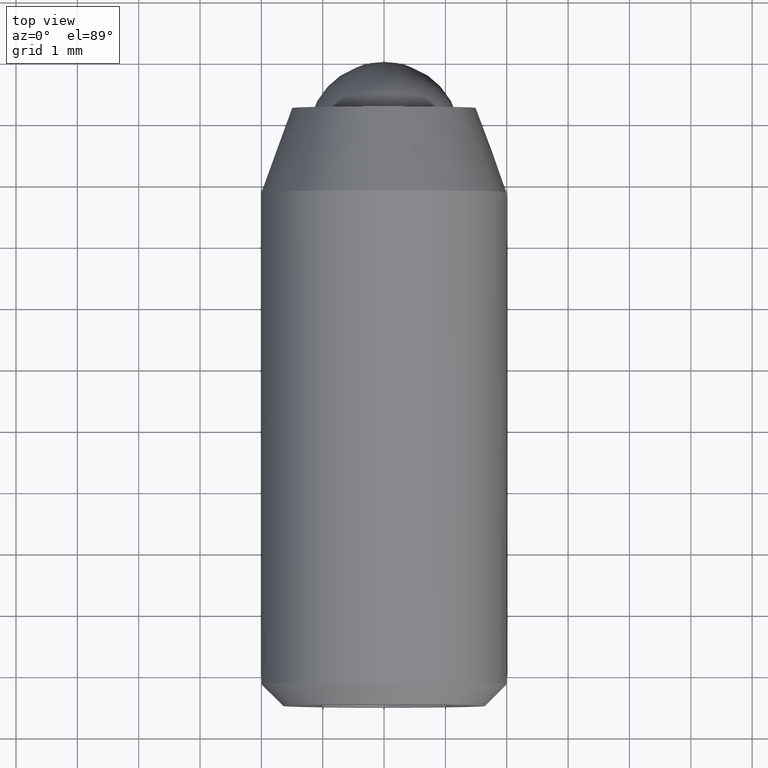
[diagram: clean part render]
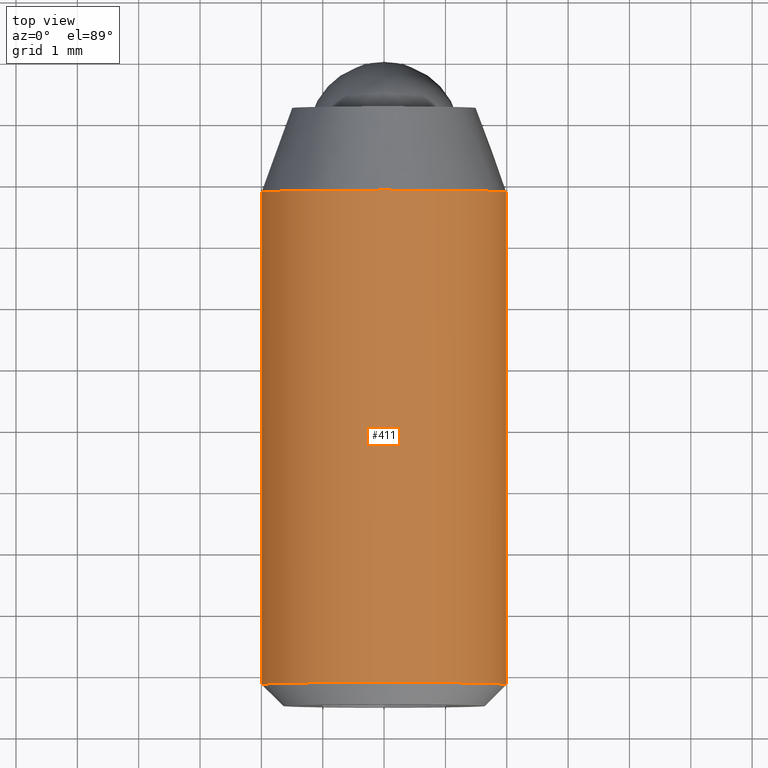
[diagram: same view with one face highlighted and labeled with its STEP entity id]
A machine part, top view. The second image highlights one B-rep face of the part: STEP entity #411.
In plain terms, the highlighted face is a freeform B-spline surface patch.
Its self-contained STEP definition (entity closure, byte-faithful):
#230=CARTESIAN_POINT('',(-0.468647227970026,-1.923082475000000,-1.944317303249655));
#231=CARTESIAN_POINT('',(-0.297656594332521,-1.923082475000000,-1.985531916897912));
#232=CARTESIAN_POINT('',(-0.122097079069714,-1.923082475000000,-1.996269596843734));
#233=CARTESIAN_POINT('',(1.874172517774020,-1.923082475000000,-2.118366675913449));
#234=CARTESIAN_POINT('',(1.996269596843733,-1.923082475000000,-0.122097079069714));
#235=CARTESIAN_POINT('',(2.118366675913447,-1.923082475000000,1.874172517774019));
#236=CARTESIAN_POINT('',(0.122097079069714,-1.923082475000000,1.996269596843733));
#237=CARTESIAN_POINT('',(-1.874172517774020,-1.923082475000000,2.118366675913447));
#238=CARTESIAN_POINT('',(-1.996269596843733,-1.923082475000000,0.122097079069714));
#239=CARTESIAN_POINT('',(-0.468647227970026,-10.355672938124998,-1.944317303249655));
#240=CARTESIAN_POINT('',(-0.297656594332521,-10.355672938124998,-1.985531916897912));
#241=CARTESIAN_POINT('',(-0.122097079069714,-10.355672938125000,-1.996269596843734));
#242=CARTESIAN_POINT('',(1.874172517774020,-10.355672938124998,-2.118366675913449));
#243=CARTESIAN_POINT('',(1.996269596843733,-10.355672938125000,-0.122097079069714));
#244=CARTESIAN_POINT('',(2.118366675913447,-10.355672938124998,1.874172517774019));
#245=CARTESIAN_POINT('',(0.122097079069714,-10.355672938125000,1.996269596843733));
#246=CARTESIAN_POINT('',(-1.874172517774020,-10.355672938124998,2.118366675913447));
#247=CARTESIAN_POINT('',(-1.996269596843733,-10.355672938125000,0.122097079069714));
#255=(BOUNDED_SURFACE()B_SPLINE_SURFACE(2,1,((#230,#239),(#231,#240),(#232,#241),(#233,#242),(#234,#243),(#235,#244),(#236,#245),(#237,#246),(#238,#247)),.UNSPECIFIED.,.F.,.F.,.U.)B_SPLINE_SURFACE_WITH_KNOTS((3,2,2,2,3),(2,2),(0.0,0.397645019878171,3.711353518862931,7.025062017847690,10.338770516832451),(0.0,8.432590463124999),.UNSPECIFIED.)GEOMETRIC_REPRESENTATION_ITEM()RATIONAL_B_SPLINE_SURFACE(((0.938140952186599,0.938140952186599),(0.964852813742386,0.964852813742386),(1.0,1.0),(0.707106781186548,0.707106781186548),(1.0,1.0),(0.707106781186548,0.707106781186548),(1.0,1.0),(0.707106781186548,0.707106781186548),(1.0,1.0)))REPRESENTATION_ITEM('')SURFACE());
#256=CARTESIAN_POINT('',(-0.468647227972025,-10.150000000000000,-1.944317303249173));
#257=VERTEX_POINT('',#256);
#258=CARTESIAN_POINT('',(0.0,-10.150000000000000,-2.0));
#259=VERTEX_POINT('',#258);
#260=CARTESIAN_POINT('',(-0.468647227972025,-10.149999999999999,-1.944317303249173));
#261=CARTESIAN_POINT('',(-0.237631606152997,-10.149999999999999,-2.000000000000001));
#262=CARTESIAN_POINT('',(0.0,-10.150000000000000,-2.0));
#270=(BOUNDED_CURVE()B_SPLINE_CURVE(2,(#260,#261,#262),.UNSPECIFIED.,.F.,.U.)B_SPLINE_CURVE_WITH_KNOTS((3,3),(0.959962709885913,1.0),.UNSPECIFIED.)CURVE()GEOMETRIC_REPRESENTATION_ITEM()RATIONAL_B_SPLINE_CURVE((0.921210900018809,0.953093396903668,1.0))REPRESENTATION_ITEM(''));
#271=EDGE_CURVE('',#257,#259,#270,.T.);
#272=ORIENTED_EDGE('',*,*,#271,.F.);
#273=CARTESIAN_POINT('',(-0.468647227972025,-2.123739000000001,-1.944317303249173));
#274=VERTEX_POINT('',#273);
#275=CARTESIAN_POINT('',(-0.468647227972025,-2.123739000000001,-1.944317303249173));
#276=CARTESIAN_POINT('',(-0.468647227972025,-10.150000000000000,-1.944317303249173));
#277=QUASI_UNIFORM_CURVE('',1,(#275,#276),.UNSPECIFIED.,.F.,.U.);
#278=EDGE_CURVE('',#274,#257,#277,.T.);
#279=ORIENTED_EDGE('',*,*,#278,.F.);
#280=CARTESIAN_POINT('',(0.0,-2.123739000000000,-2.0));
#281=VERTEX_POINT('',#280);
#282=CARTESIAN_POINT('',(-0.468647227972025,-2.123739000000001,-1.944317303249173));
#283=CARTESIAN_POINT('',(-0.237631606152998,-2.123739000000000,-2.000000000000001));
#284=CARTESIAN_POINT('',(0.0,-2.123739000000000,-2.0));
#292=(BOUNDED_CURVE()B_SPLINE_CURVE(2,(#282,#283,#284),.UNSPECIFIED.,.F.,.U.)B_SPLINE_CURVE_WITH_KNOTS((3,3),(0.959962709885912,1.0),.UNSPECIFIED.)CURVE()GEOMETRIC_REPRESENTATION_ITEM()RATIONAL_B_SPLINE_CURVE((0.921210900018809,0.953093396903668,1.0))REPRESENTATION_ITEM(''));
#293=EDGE_CURVE('',#274,#281,#292,.T.);
#294=ORIENTED_EDGE('',*,*,#293,.T.);
#295=CARTESIAN_POINT('',(1.986018696629059,-2.123737481023893,-0.236066781207262));
#296=VERTEX_POINT('',#295);
#297=CARTESIAN_POINT('',(0.0,-2.123739000000000,-2.0));
#298=CARTESIAN_POINT('',(1.776350239143317,-2.123738240511947,-1.999999967371865));
#299=CARTESIAN_POINT('',(1.986018696629059,-2.123737481023893,-0.236066781207262));
#307=(BOUNDED_CURVE()B_SPLINE_CURVE(2,(#297,#298,#299),.UNSPECIFIED.,.F.,.U.)B_SPLINE_CURVE_WITH_KNOTS((3,3),(0.0,0.229562611614494),.UNSPECIFIED.)CURVE()GEOMETRIC_REPRESENTATION_ITEM()RATIONAL_B_SPLINE_CURVE((1.0,0.731050671060033,0.956027024867462))REPRESENTATION_ITEM(''));
#308=EDGE_CURVE('',#281,#296,#307,.T.);
#309=ORIENTED_EDGE('',*,*,#308,.T.);
#310=CARTESIAN_POINT('',(0.0,-2.123739000000000,2.0));
#311=VERTEX_POINT('',#310);
#312=CARTESIAN_POINT('',(1.986018696629059,-2.123737481023893,-0.236066781207262));
#313=CARTESIAN_POINT('',(1.999999465441007,-2.123737520973749,-0.118447355760610));
#314=CARTESIAN_POINT('',(1.999999481697853,-2.123737565953450,0.000000061607637));
#315=CARTESIAN_POINT('',(1.999999756196814,-2.123738325441503,2.000000028979503));
#316=CARTESIAN_POINT('',(0.0,-2.123739000000000,2.0));
#324=(BOUNDED_CURVE()B_SPLINE_CURVE(2,(#312,#313,#314,#315,#316),.UNSPECIFIED.,.F.,.U.)B_SPLINE_CURVE_WITH_KNOTS((3,2,3),(0.229562611614494,0.250000000000000,0.500000000000000),.UNSPECIFIED.)CURVE()GEOMETRIC_REPRESENTATION_ITEM()RATIONAL_B_SPLINE_CURVE((0.956027024867462,0.976056110126514,1.0,0.707106781186548,1.0))REPRESENTATION_ITEM(''));
#325=EDGE_CURVE('',#296,#311,#324,.T.);
#326=ORIENTED_EDGE('',*,*,#325,.T.);
#327=CARTESIAN_POINT('',(-1.996269596843757,-2.123739000001591,0.122097079074065));
#328=VERTEX_POINT('',#327);
#329=CARTESIAN_POINT('',(0.0,-2.123739000000000,2.0));
#330=CARTESIAN_POINT('',(-1.881412133795027,-2.123739000000000,2.0));
#331=CARTESIAN_POINT('',(-1.996269596843757,-2.123739000001591,0.122097079074065));
#339=(BOUNDED_CURVE()B_SPLINE_CURVE(2,(#329,#330,#331),.UNSPECIFIED.,.F.,.U.)B_SPLINE_CURVE_WITH_KNOTS((3,3),(0.500000000000000,0.739332962240471),.UNSPECIFIED.)CURVE()GEOMETRIC_REPRESENTATION_ITEM()RATIONAL_B_SPLINE_CURVE((1.0,0.719603993284921,0.976072041669992))REPRESENTATION_ITEM(''));
#340=EDGE_CURVE('',#311,#328,#339,.T.);
#341=ORIENTED_EDGE('',*,*,#340,.T.);
#342=CARTESIAN_POINT('',(-1.996269606971594,-10.150000000000000,0.122096913480431));
#343=VERTEX_POINT('',#342);
#344=CARTESIAN_POINT('',(-1.996269596843757,-2.123739000001591,0.122097079074065));
#345=CARTESIAN_POINT('',(-1.996269606971594,-10.150000000000000,0.122096913480431));
#346=QUASI_UNIFORM_CURVE('',1,(#344,#345),.UNSPECIFIED.,.F.,.U.);
#347=EDGE_CURVE('',#328,#343,#346,.T.);
#348=ORIENTED_EDGE('',*,*,#347,.T.);
#349=CARTESIAN_POINT('',(-1.993834667467310,-10.149999999997350,0.156918191476072));
#350=VERTEX_POINT('',#349);
#351=CARTESIAN_POINT('',(-1.993834667467309,-10.149999999997348,0.156918191476072));
#352=CARTESIAN_POINT('',(-1.995204084793074,-10.149999999999999,0.139518094536377));
#353=CARTESIAN_POINT('',(-1.996269606971594,-10.149999999999997,0.122096913480431));
#361=(BOUNDED_CURVE()B_SPLINE_CURVE(2,(#351,#352,#353),.UNSPECIFIED.,.F.,.U.)B_SPLINE_CURVE_WITH_KNOTS((3,3),(0.736331300629298,0.739332990867260),.UNSPECIFIED.)CURVE()GEOMETRIC_REPRESENTATION_ITEM()RATIONAL_B_SPLINE_CURVE((0.969723356164576,0.972855505431034,0.976072103022660))REPRESENTATION_ITEM(''));
#362=EDGE_CURVE('',#350,#343,#361,.T.);
#363=ORIENTED_EDGE('',*,*,#362,.F.);
#364=CARTESIAN_POINT('',(0.0,-10.150000000000000,2.0));
#365=VERTEX_POINT('',#364);
#366=CARTESIAN_POINT('',(0.0,-10.150000000000000,2.0));
#367=CARTESIAN_POINT('',(-1.848780983278884,-10.149999999999999,2.000000000000000));
#368=CARTESIAN_POINT('',(-1.993834667467310,-10.149999999997348,0.156918191476072));
#376=(BOUNDED_CURVE()B_SPLINE_CURVE(2,(#366,#367,#368),.UNSPECIFIED.,.F.,.U.)B_SPLINE_CURVE_WITH_KNOTS((3,3),(0.500000000000000,0.736331300629298),.UNSPECIFIED.)CURVE()GEOMETRIC_REPRESENTATION_ITEM()RATIONAL_B_SPLINE_CURVE((1.0,0.723120658609261,0.969723356164576))REPRESENTATION_ITEM(''));
#377=EDGE_CURVE('',#365,#350,#376,.T.);
#378=ORIENTED_EDGE('',*,*,#377,.F.);
#379=CARTESIAN_POINT('',(1.993834667467310,-10.149999999997350,-0.156918191476073));
#380=VERTEX_POINT('',#379);
#381=CARTESIAN_POINT('',(1.993834667467310,-10.149999999997348,-0.156918191476073));
#382=CARTESIAN_POINT('',(2.000000000000000,-10.150000000000000,-0.078580214035607));
#383=CARTESIAN_POINT('',(2.0,-10.150000000000000,-4.439198E-016));
#384=CARTESIAN_POINT('',(2.000000000000000,-10.149999999999999,2.000000000000000));
#385=CARTESIAN_POINT('',(0.0,-10.150000000000000,2.0));
#393=(BOUNDED_CURVE()B_SPLINE_CURVE(2,(#381,#382,#383,#384,#385),.UNSPECIFIED.,.F.,.U.)B_SPLINE_CURVE_WITH_KNOTS((3,2,3),(0.236331300629298,0.250000000000000,0.500000000000000),.UNSPECIFIED.)CURVE()GEOMETRIC_REPRESENTATION_ITEM()RATIONAL_B_SPLINE_CURVE((0.969723356164576,0.983986122577287,1.0,0.707106781186548,1.0))REPRESENTATION_ITEM(''));
#394=EDGE_CURVE('',#380,#365,#393,.T.);
#395=ORIENTED_EDGE('',*,*,#394,.F.);
#396=CARTESIAN_POINT('',(0.0,-10.150000000000000,-2.0));
#397=CARTESIAN_POINT('',(1.848780983278886,-10.149999999999999,-2.0));
#398=CARTESIAN_POINT('',(1.993834667467310,-10.149999999997348,-0.156918191476073));
#406=(BOUNDED_CURVE()B_SPLINE_CURVE(2,(#396,#397,#398),.UNSPECIFIED.,.F.,.U.)B_SPLINE_CURVE_WITH_KNOTS((3,3),(0.0,0.236331300629298),.UNSPECIFIED.)CURVE()GEOMETRIC_REPRESENTATION_ITEM()RATIONAL_B_SPLINE_CURVE((1.0,0.723120658609261,0.969723356164576))REPRESENTATION_ITEM(''));
#407=EDGE_CURVE('',#259,#380,#406,.T.);
#408=ORIENTED_EDGE('',*,*,#407,.F.);
#409=EDGE_LOOP('',(#272,#279,#294,#309,#326,#341,#348,#363,#378,#395,#408));
#410=FACE_OUTER_BOUND('',#409,.T.);
#411=ADVANCED_FACE('',(#410),#255,.T.);